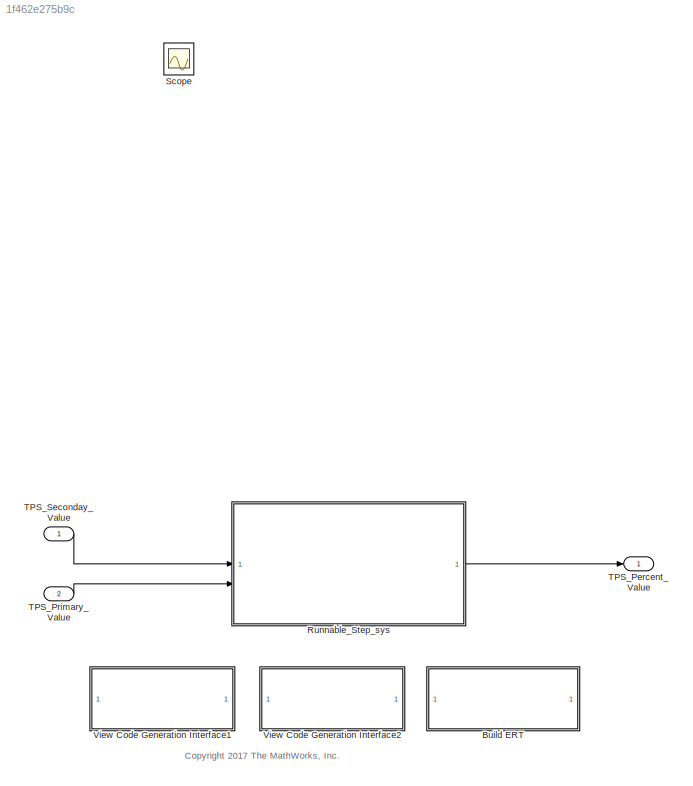
MODEL slx_1f462e275b9c
KIND model
CONFIG AbsTol = auto
CONFIG EnableMultiTasking = off
CONFIG FixedStep = 0.005
CONFIG MaxStep = auto
CONFIG MinStep = auto
CONFIG PreLoadFcn = Simulink.defineIntEnumType('SensorOption',...\n    {'Primary', 'Secondary'},...\n    [0;1],...\n    'DefaultValue', 'Primary');\n\nSensorSelection = Simulink.Parameter;\nSensorSelection.Value = SensorOption.Primary;\nSensorSelection.DataType = 'Enum: SensorOption';\n
CONFIG RelTol = 1e-3
CONFIG SampleTimeConstraint = Unconstrained
CONFIG SolverName = FixedStepDiscrete
CONFIG StartTime = 0.0
CONFIG StopTime = 10.0
BLOCK [SubSystem] Build ERT
  OpenFcn = try\n    if ~exist('rtwdemo_ert', 'dir')\n        disp('Creating working directory rtwdemo_ert')\n        mkdir('rtwdemo_ert')\n    end\n    cd('rtwdemo_ert');\n    rtwbuilddemomodel(bdroot);\n    cd('..');\ncatch myException\n    rethrow(myException);\nend
  PermitHierarchicalResolution = ExplicitOnly
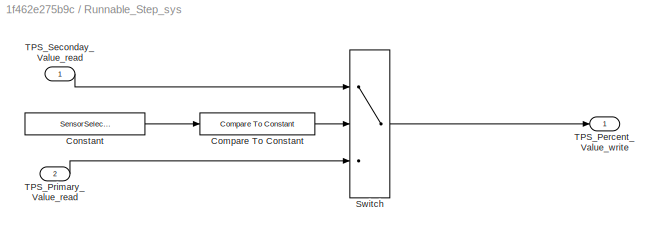
BLOCK [SubSystem] Runnable_Step_sys
  SystemSampleTime = 0.005
  TreatAsAtomicUnit = on
BLOCK [Reference] Runnable_Step_sys/Compare To Constant  REF=simulink/Logic and Bit
Operations/Compare
To Constant
  SourceBlock = simulink/Logic and Bit\nOperations/Compare\nTo Constant
  SourceType = Compare To Constant
BLOCK [Constant] Runnable_Step_sys/Constant
  Value = SensorSelection
BLOCK [Switch] Runnable_Step_sys/Switch
  Criteria = u2 ~= 0
  InputSameDT = off
  SaturateOnIntegerOverflow = off
BLOCK [Outport] Runnable_Step_sys/TPS_Percent_Value_write
  VectorParamsAs1DForOutWhenUnconnected = off
BLOCK [Inport] Runnable_Step_sys/TPS_Primary_Value_read
  Port = 2
BLOCK [Inport] Runnable_Step_sys/TPS_Seconday_Value_read
BLOCK [Scope] Scope
  Floating = off
  IOType = viewer
  NumInputPorts = 1
  ScopeSpecificationString = Simulink.scopes.TimeScopeBlockCfg('CurrentConfiguration', extmgr.ConfigurationSet(extmgr.Configuration('Core','General UI',true),extmgr.Configuration('Core','Source UI',true),extmgr.Configuration('Sources','WiredSimulink',true),extmgr.Configuration('Visuals','Time Domain',true,'SerializedDisplays',{struct('MinYLimReal','6.8375','MaxYLimReal','108.4625','YLabelReal','','MinYLimMag','6.8375','MaxYLi...<+1365ch>
BLOCK [Outport] TPS_Percent_Value
  OutDataTypeStr = single
  PortDimensions = 1
  SamplingMode = Sample based
  SignalType = real
  VectorParamsAs1DForOutWhenUnconnected = off
BLOCK [Inport] TPS_Primary_Value
  OutDataTypeStr = single
  Port = 2
  PortDimensions = 1
  SamplingMode = Sample based
  SignalType = real
BLOCK [Inport] TPS_Seconday_Value
  OutDataTypeStr = single
  PortDimensions = 1
  SamplingMode = Sample based
  SignalType = real
BLOCK [SubSystem] View Code Generation Interface1
  OpenFcn = autosar_ui_launch(bdroot)
  PermitHierarchicalResolution = ExplicitOnly
BLOCK [SubSystem] View Code Generation Interface2
  OpenFcn = dlg = slCfgPrmDlg(bdroot,'Open');\ndlg = slCfgPrmDlg(bdroot,'TurnToPage',[message('RTW:configSet:configSetCodeGen').getString,'/',message('RTW:autosar:autosarCodeGenOptions').getString]); \nclear dlg;
  PermitHierarchicalResolution = ExplicitOnly
ANNOTATION (root): <copyright redacted>
LINE Runnable_Step_sys/Compare To Constant:1 -> Runnable_Step_sys/Switch:2
LINE Runnable_Step_sys/Constant:1 -> Runnable_Step_sys/Compare To Constant:1
LINE Runnable_Step_sys/Switch:1 -> Runnable_Step_sys/TPS_Percent_Value_write:1
LINE Runnable_Step_sys/TPS_Primary_Value_read:1 -> Runnable_Step_sys/Switch:3
LINE Runnable_Step_sys/TPS_Seconday_Value_read:1 -> Runnable_Step_sys/Switch:1
LINE Runnable_Step_sys:1 -> TPS_Percent_Value:1
LINE TPS_Primary_Value:1 -> Runnable_Step_sys:2
LINE TPS_Seconday_Value:1 -> Runnable_Step_sys:1
